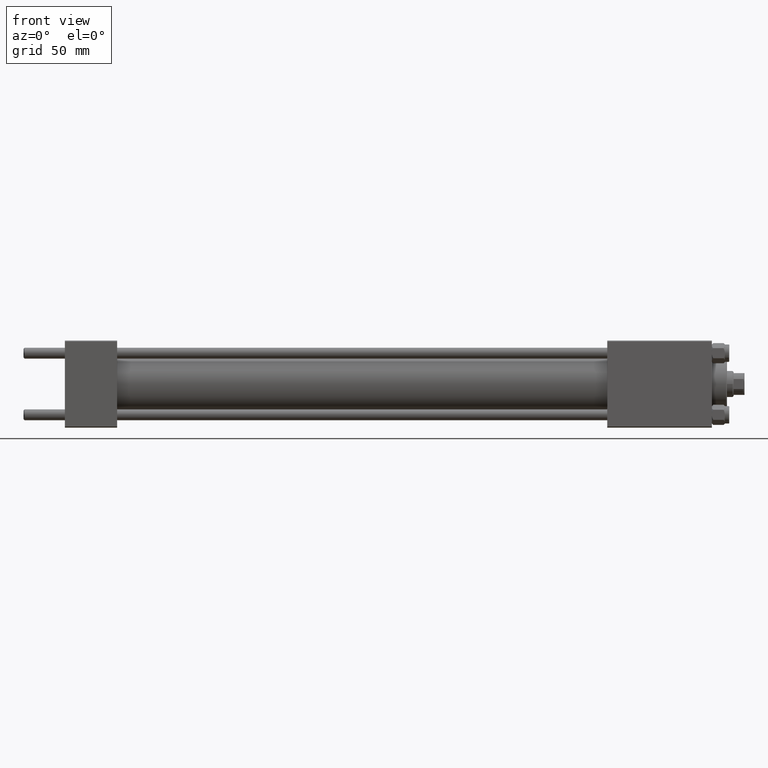
[diagram: clean part render]
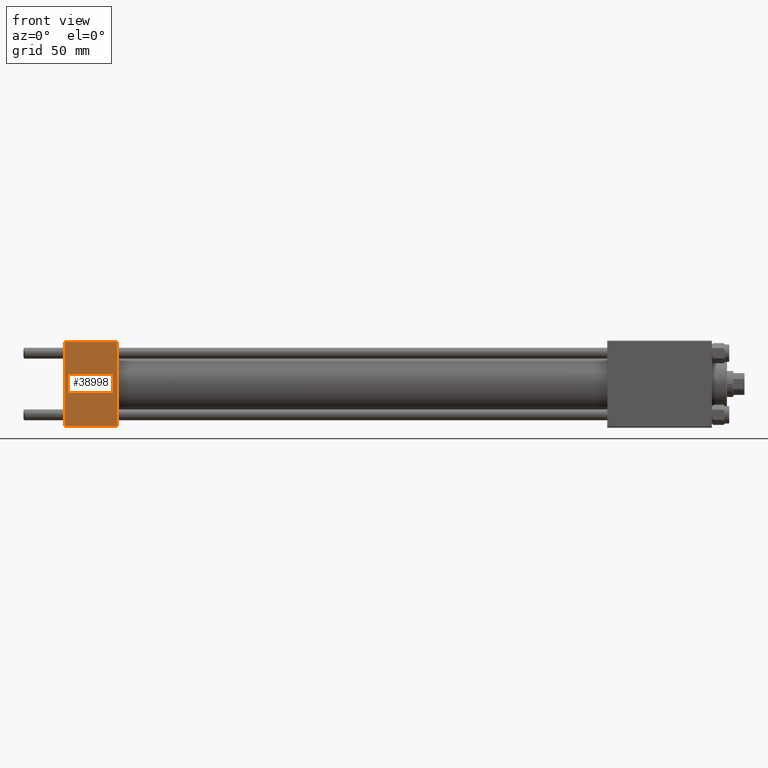
[diagram: same view with one face highlighted and labeled with its STEP entity id]
A machine part, front view. The second image highlights one B-rep face of the part: STEP entity #38998.
In plain terms, the highlighted planar face has unit normal (0, 1, 0).
Its self-contained STEP definition (entity closure, byte-faithful):
#1045 = DIRECTION ( 'NONE',  ( 0.000000000000000000, -8.673617379884036705E-17, 1.000000000000000000 ) ) ;
#2462 = LINE ( 'NONE', #24616, #35931 ) ;
#3743 = CARTESIAN_POINT ( 'NONE',  ( 24.00000000000000000, -20.00000000000000000, -19.49999999999999645 ) ) ;
#4582 = PLANE ( 'NONE',  #48031 ) ;
#4827 = FACE_OUTER_BOUND ( 'NONE', #27930, .T. ) ;
#5699 = EDGE_CURVE ( 'NONE', #20015, #29623, #28510, .T. ) ;
#5746 = DIRECTION ( 'NONE',  ( 1.000000000000000000, 0.000000000000000000, 0.000000000000000000 ) ) ;
#6341 = DIRECTION ( 'NONE',  ( 0.000000000000000000, 8.673617379884036705E-17, -1.000000000000000000 ) ) ;
#6591 = LINE ( 'NONE', #33012, #39554 ) ;
#9679 = DIRECTION ( 'NONE',  ( -1.000000000000000000, 0.000000000000000000, 0.000000000000000000 ) ) ;
#12141 = VECTOR ( 'NONE', #9679, 1000.000000000000000 ) ;
#12618 = CARTESIAN_POINT ( 'NONE',  ( 24.00000000000000000, -20.00000000000000355, 19.99999999999998934 ) ) ;
#15225 = VERTEX_POINT ( 'NONE', #28123 ) ;
#17571 = CARTESIAN_POINT ( 'NONE',  ( 0.000000000000000000, -20.00000000000000355, 19.49999999999998224 ) ) ;
#18655 = EDGE_CURVE ( 'NONE', #15225, #29623, #2462, .T. ) ;
#20015 = VERTEX_POINT ( 'NONE', #41671 ) ;
#21216 = VECTOR ( 'NONE', #42870, 1000.000000000000000 ) ;
#22446 = ORIENTED_EDGE ( 'NONE', *, *, #5699, .F. ) ;
#24196 = DIRECTION ( 'NONE',  ( -0.000000000000000000, 1.000000000000000000, 8.673617379884036705E-17 ) ) ;
#24616 = CARTESIAN_POINT ( 'NONE',  ( 24.00000000000000000, -20.00000000000000000, -19.49999999999999645 ) ) ;
#27189 = ORIENTED_EDGE ( 'NONE', *, *, #18655, .T. ) ;
#27293 = ORIENTED_EDGE ( 'NONE', *, *, #34007, .T. ) ;
#27930 = EDGE_LOOP ( 'NONE', ( #27293, #27189, #22446, #41257 ) ) ;
#28123 = CARTESIAN_POINT ( 'NONE',  ( 0.000000000000000000, -20.00000000000000000, -19.49999999999999645 ) ) ;
#28443 = VERTEX_POINT ( 'NONE', #17571 ) ;
#28510 = LINE ( 'NONE', #43861, #21216 ) ;
#28820 = LINE ( 'NONE', #39883, #12141 ) ;
#29623 = VERTEX_POINT ( 'NONE', #3743 ) ;
#31322 = EDGE_CURVE ( 'NONE', #20015, #28443, #28820, .T. ) ;
#33012 = CARTESIAN_POINT ( 'NONE',  ( 0.000000000000000000, -20.00000000000000355, 19.99999999999998934 ) ) ;
#34007 = EDGE_CURVE ( 'NONE', #28443, #15225, #6591, .T. ) ;
#35931 = VECTOR ( 'NONE', #5746, 1000.000000000000000 ) ;
#38998 = ADVANCED_FACE ( 'NONE', ( #4827 ), #4582, .F. ) ;
#39554 = VECTOR ( 'NONE', #6341, 1000.000000000000000 ) ;
#39883 = CARTESIAN_POINT ( 'NONE',  ( 24.00000000000000000, -20.00000000000000355, 19.49999999999998224 ) ) ;
#41257 = ORIENTED_EDGE ( 'NONE', *, *, #31322, .T. ) ;
#41671 = CARTESIAN_POINT ( 'NONE',  ( 24.00000000000000000, -20.00000000000000355, 19.49999999999998224 ) ) ;
#42870 = DIRECTION ( 'NONE',  ( 0.000000000000000000, 8.673617379884036705E-17, -1.000000000000000000 ) ) ;
#43861 = CARTESIAN_POINT ( 'NONE',  ( 24.00000000000000000, -20.00000000000000355, 19.99999999999998934 ) ) ;
#48031 = AXIS2_PLACEMENT_3D ( 'NONE', #12618, #24196, #1045 ) ;